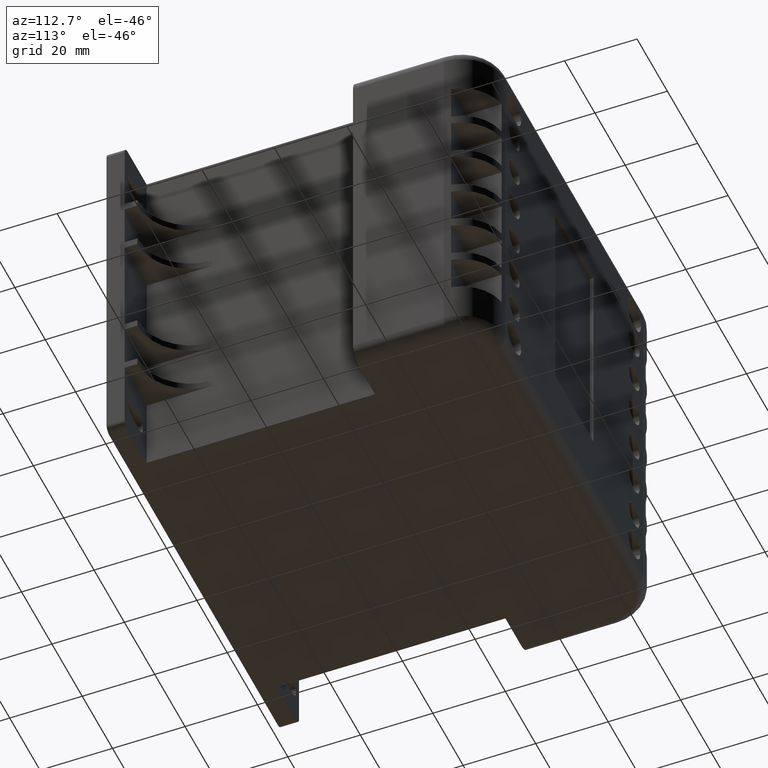
[diagram: clean part render]
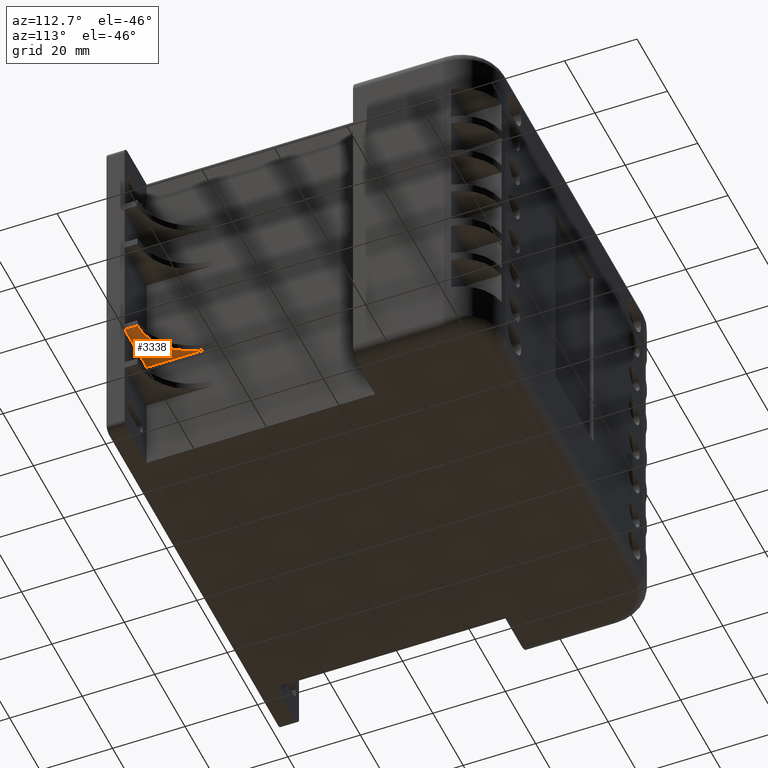
[diagram: same view with one face highlighted and labeled with its STEP entity id]
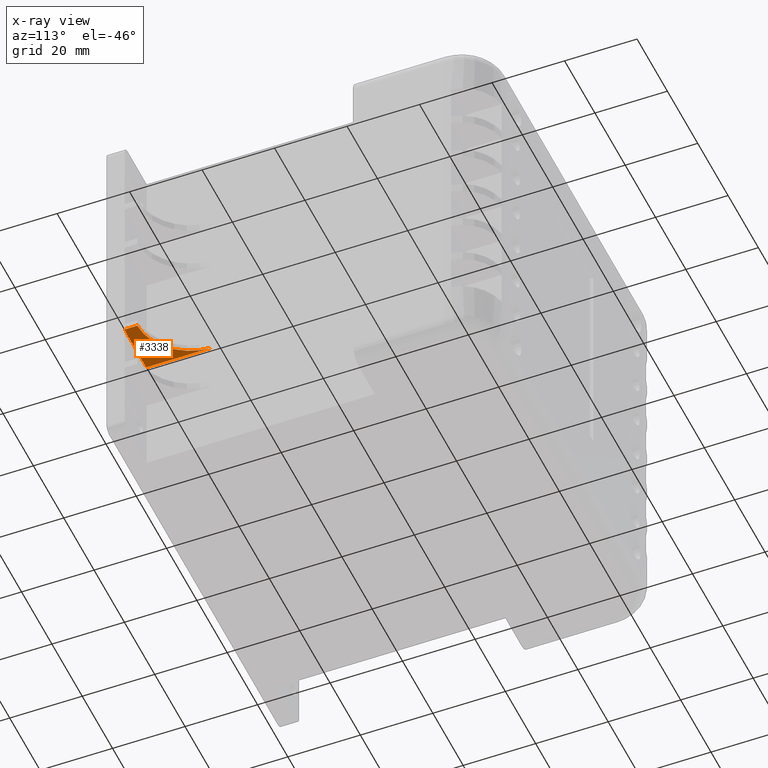
[diagram: x-ray of the same camera — body ghosted, the highlighted face saturated]
A machine part, auxiliary view. The second image highlights one B-rep face of the part: STEP entity #3338.
The next image is the same camera in x-ray: the body ghosted, the highlighted face saturated — about 0% of this face is hidden behind the body in this view.
In plain terms, the highlighted planar face has unit normal (-0, 0, -1).
Its self-contained STEP definition (entity closure, byte-faithful):
#119=CIRCLE('',#3669,14.5);
#299=FACE_OUTER_BOUND('',#508,.T.);
#508=EDGE_LOOP('',(#2320,#2321,#2322,#2323));
#791=LINE('',#5163,#1111);
#792=LINE('',#5165,#1112);
#793=LINE('',#5166,#1113);
#1111=VECTOR('',#4192,10.);
#1112=VECTOR('',#4193,10.);
#1113=VECTOR('',#4194,10.);
#1414=VERTEX_POINT('',#5150);
#1415=VERTEX_POINT('',#5152);
#1418=VERTEX_POINT('',#5162);
#1419=VERTEX_POINT('',#5164);
#1746=EDGE_CURVE('',#1414,#1415,#119,.T.);
#1751=EDGE_CURVE('',#1418,#1414,#791,.T.);
#1752=EDGE_CURVE('',#1419,#1418,#792,.T.);
#1753=EDGE_CURVE('',#1419,#1415,#793,.T.);
#2320=ORIENTED_EDGE('',*,*,#1746,.F.);
#2321=ORIENTED_EDGE('',*,*,#1751,.F.);
#2322=ORIENTED_EDGE('',*,*,#1752,.F.);
#2323=ORIENTED_EDGE('',*,*,#1753,.T.);
#2959=PLANE('',#3671);
#3338=ADVANCED_FACE('',(#299),#2959,.T.);
#3669=AXIS2_PLACEMENT_3D('',#5153,#4182,#4183);
#3671=AXIS2_PLACEMENT_3D('',#5161,#4190,#4191);
#4182=DIRECTION('center_axis',(-6.125368411725E-16,0.,-1.));
#4183=DIRECTION('ref_axis',(0.,-1.,0.));
#4190=DIRECTION('center_axis',(-6.125368411725E-16,0.,-1.));
#4191=DIRECTION('ref_axis',(0.,1.,0.));
#4192=DIRECTION('',(0.,1.,0.));
#4193=DIRECTION('',(1.,0.,-6.125368411725E-16));
#4194=DIRECTION('',(0.,1.,0.));
#5150=CARTESIAN_POINT('',(4.44089209850063E-15,8.50000000000001,35.));
#5152=CARTESIAN_POINT('',(-14.5,23.,35.));
#5153=CARTESIAN_POINT('Origin',(4.44089209850063E-15,23.,35.));
#5161=CARTESIAN_POINT('Origin',(-14.5,5.,35.));
#5162=CARTESIAN_POINT('',(4.44089209850063E-15,5.,35.));
#5163=CARTESIAN_POINT('',(4.44089209850063E-15,5.,35.));
#5164=CARTESIAN_POINT('',(-14.5,5.,35.));
#5165=CARTESIAN_POINT('',(-14.5,5.,35.));
#5166=CARTESIAN_POINT('',(-14.5,5.,35.));